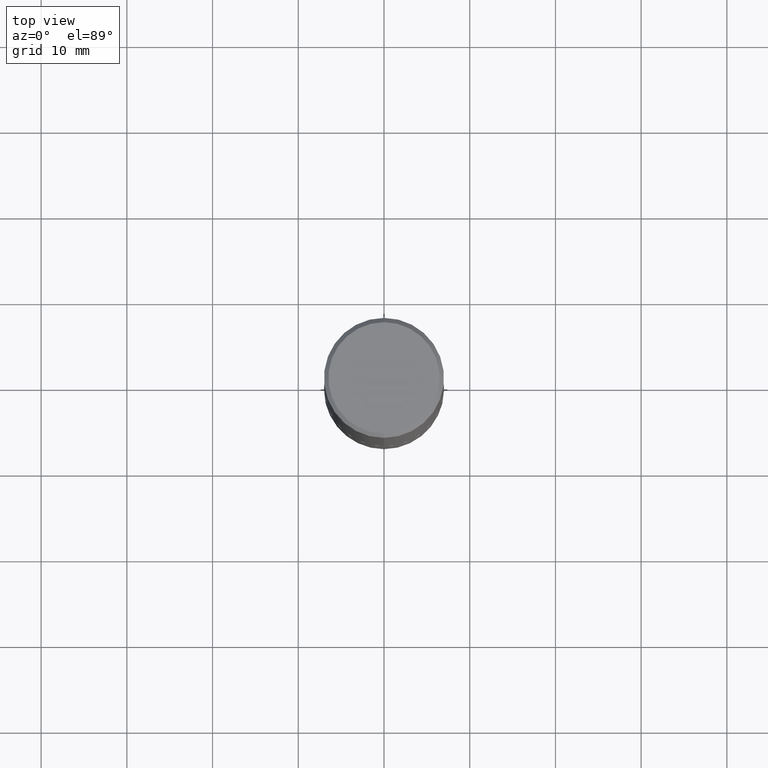
[diagram: clean part render]
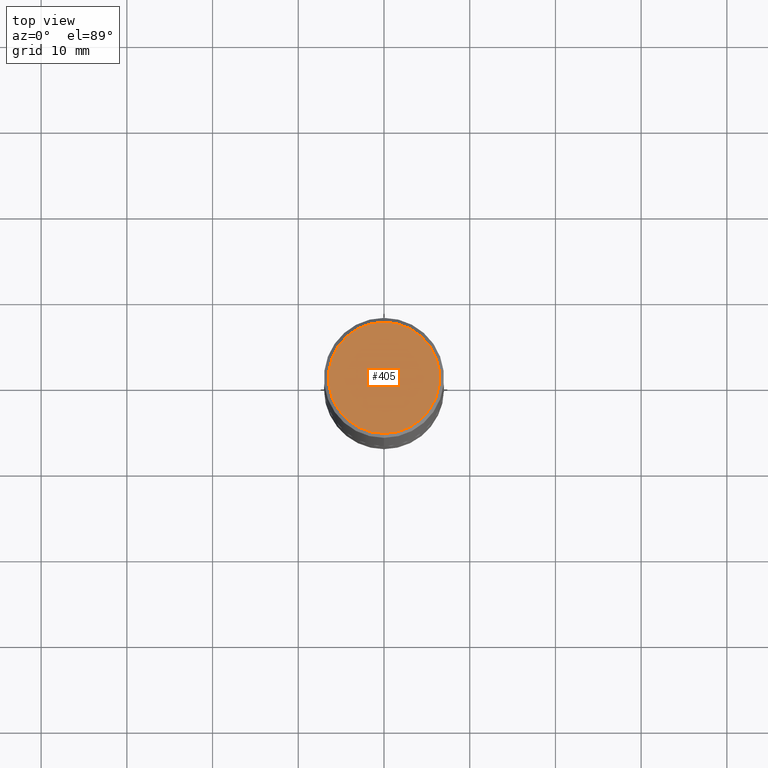
[diagram: same view with one face highlighted and labeled with its STEP entity id]
A machine part, top view. The second image highlights one B-rep face of the part: STEP entity #405.
In plain terms, the highlighted planar face has unit normal (0, -0, -1).
Its self-contained STEP definition (entity closure, byte-faithful):
#85 = AXIS2_PLACEMENT_3D ( 'NONE', #178, #210, #119 ) ;
#90 = DIRECTION ( 'NONE',  ( -2.447914526065286047E-29, 3.487978928773040976E-15, 1.000000000000000000 ) ) ;
#97 = VERTEX_POINT ( 'NONE', #318 ) ;
#112 = CARTESIAN_POINT ( 'NONE',  ( 3.261089778898830066E-45, -4.646654248961670256E-31, -1.332191032070315374E-16 ) ) ;
#119 = DIRECTION ( 'NONE',  ( 6.982962677686265922E-15, 1.000000000000000000, -3.487978928773041370E-15 ) ) ;
#139 = DIRECTION ( 'NONE',  ( -6.982962677686265922E-15, -1.000000000000000000, 3.487978928773040976E-15 ) ) ;
#160 = EDGE_CURVE ( 'NONE', #97, #174, #385, .T. ) ;
#164 = DIRECTION ( 'NONE',  ( -6.982962677686265922E-15, -1.000000000000000000, 3.487978928773040976E-15 ) ) ;
#174 = VERTEX_POINT ( 'NONE', #197 ) ;
#178 = CARTESIAN_POINT ( 'NONE',  ( 1.784845260416610724E-15, 0.2556000000000001604, -9.581369657979055694E-16 ) ) ;
#194 = AXIS2_PLACEMENT_3D ( 'NONE', #112, #90, #139 ) ;
#197 = CARTESIAN_POINT ( 'NONE',  ( 1.854674887193473233E-15, 0.2556000000000001604, -1.024746517401421350E-15 ) ) ;
#210 = DIRECTION ( 'NONE',  ( 2.447914526065285207E-29, -3.487978928773041370E-15, -1.000000000000000000 ) ) ;
#230 = DIRECTION ( 'NONE',  ( -2.447914526065286047E-29, 3.487978928773040976E-15, 1.000000000000000000 ) ) ;
#238 = PLANE ( 'NONE',  #85 ) ;
#254 = AXIS2_PLACEMENT_3D ( 'NONE', #381, #230, #164 ) ;
#301 = CIRCLE ( 'NONE', #194, 0.2556000000000001604 ) ;
#318 = CARTESIAN_POINT ( 'NONE',  ( -1.822148268208119170E-15, -0.2556000000000001604, 7.583083109873583249E-16 ) ) ;
#330 = EDGE_LOOP ( 'NONE', ( #406, #350 ) ) ;
#336 = FACE_OUTER_BOUND ( 'NONE', #330, .T. ) ;
#350 = ORIENTED_EDGE ( 'NONE', *, *, #160, .T. ) ;
#352 = EDGE_CURVE ( 'NONE', #174, #97, #301, .T. ) ;
#381 = CARTESIAN_POINT ( 'NONE',  ( 3.261089778898830066E-45, -4.646654248961670256E-31, -1.332191032070315374E-16 ) ) ;
#385 = CIRCLE ( 'NONE', #254, 0.2556000000000001604 ) ;
#405 = ADVANCED_FACE ( 'NONE', ( #336 ), #238, .F. ) ;
#406 = ORIENTED_EDGE ( 'NONE', *, *, #352, .T. ) ;